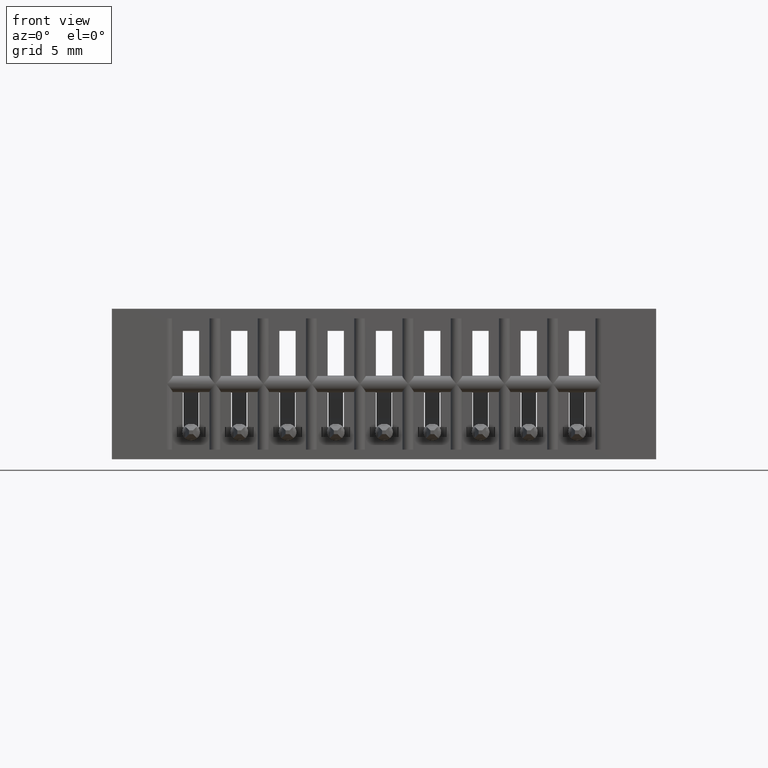
[diagram: clean part render]
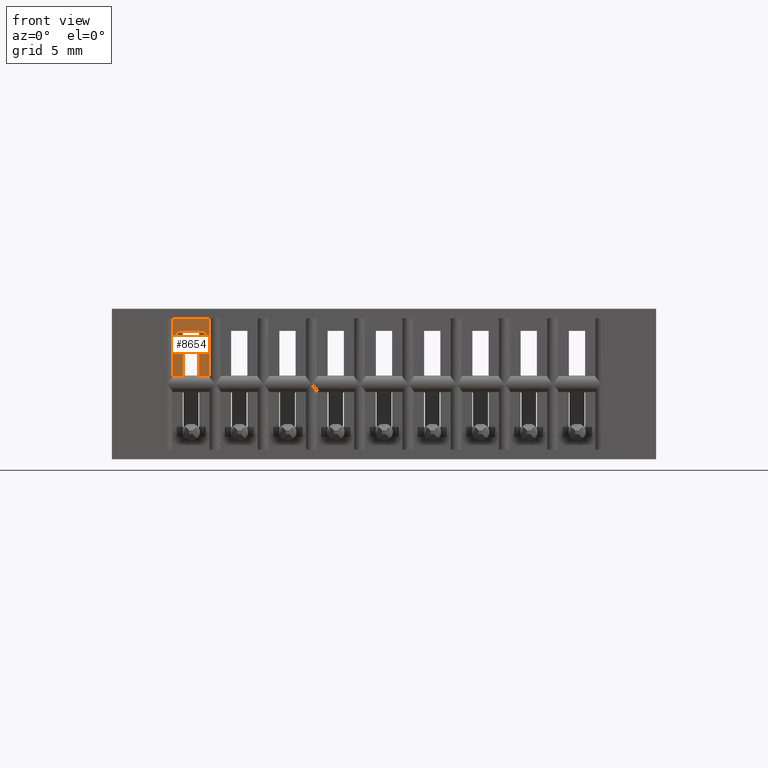
[diagram: same view with one face highlighted and labeled with its STEP entity id]
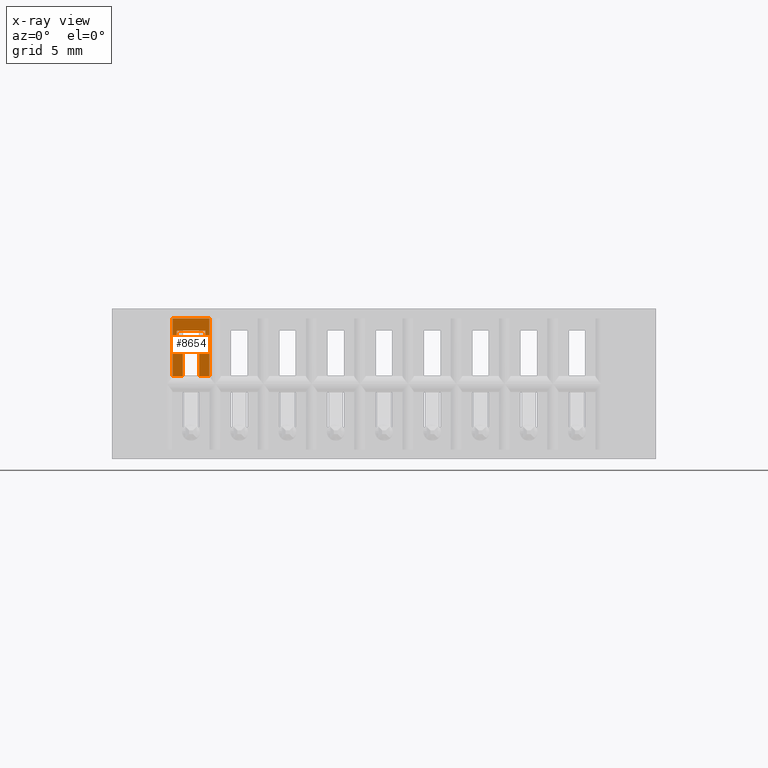
[diagram: x-ray of the same camera — body ghosted, the highlighted face saturated]
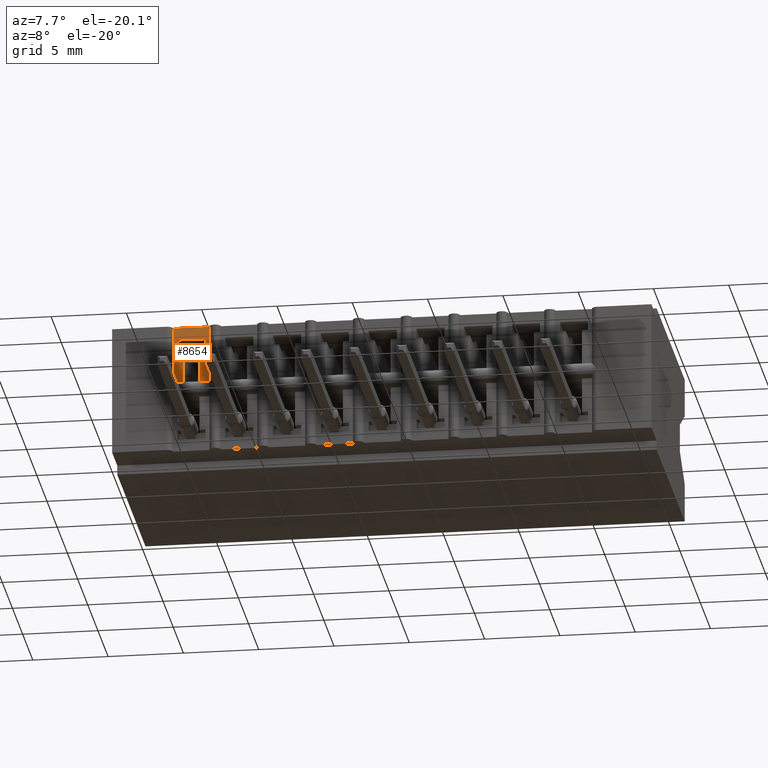
[diagram: same view with one face highlighted and labeled with its STEP entity id]
A machine part, front view. The second image highlights one B-rep face of the part: STEP entity #8654.
The next image is the same camera in x-ray: the body ghosted, the highlighted face saturated — about 0% of this face is hidden behind the body in this view.
A second angle (auxiliary view) of the same face is appended — the face is thin or edge-on in the first view.
In plain terms, the highlighted planar face has unit normal (0, 1, 0).
Its self-contained STEP definition (entity closure, byte-faithful):
#400 = LINE ( 'NONE', #8884, #6947 ) ;
#433 = EDGE_CURVE ( 'NONE', #1690, #7305, #17477, .T. ) ;
#636 = DIRECTION ( 'NONE',  ( 1.000000000000000000, 0.0000000000000000000, -2.307304048702924629E-16 ) ) ;
#667 = DIRECTION ( 'NONE',  ( -1.000000000000000000, -0.0000000000000000000, 2.307304048702924629E-16 ) ) ;
#753 = CARTESIAN_POINT ( 'NONE',  ( -19685.03937007874265, 0.01499999999999987801, -0.1741433463808434168 ) ) ;
#941 = DIRECTION ( 'NONE',  ( 1.000000000000000000, -0.0000000000000000000, -2.307304048702925122E-16 ) ) ;
#955 = VECTOR ( 'NONE', #1801, 39.37007874015748143 ) ;
#1187 = ORIENTED_EDGE ( 'NONE', *, *, #11832, .F. ) ;
#1385 = ORIENTED_EDGE ( 'NONE', *, *, #2469, .F. ) ;
#1690 = VERTEX_POINT ( 'NONE', #11915 ) ;
#1701 = DIRECTION ( 'NONE',  ( -0.0000000000000000000, -0.0000000000000000000, 1.000000000000000000 ) ) ;
#1801 = DIRECTION ( 'NONE',  ( 1.000000000000000000, -0.0000000000000000000, -2.307304048702925122E-16 ) ) ;
#1914 = CARTESIAN_POINT ( 'NONE',  ( 0.1839999999995913238, 0.01499999999999987801, -0.1741433463853853947 ) ) ;
#1949 = VECTOR ( 'NONE', #3710, 39.37007874015748143 ) ;
#2120 = VECTOR ( 'NONE', #6006, 39.37007874015748143 ) ;
#2371 = EDGE_CURVE ( 'NONE', #7305, #12217, #14092, .T. ) ;
#2459 = VECTOR ( 'NONE', #636, 39.37007874015748143 ) ;
#2469 = EDGE_CURVE ( 'NONE', #4465, #12217, #10388, .T. ) ;
#2598 = VECTOR ( 'NONE', #17450, 39.37007874015748143 ) ;
#3004 = VERTEX_POINT ( 'NONE', #8794 ) ;
#3010 = FACE_OUTER_BOUND ( 'NONE', #15028, .T. ) ;
#3639 = ORIENTED_EDGE ( 'NONE', *, *, #4146, .T. ) ;
#3694 = VECTOR ( 'NONE', #12821, 39.37007874015748143 ) ;
#3710 = DIRECTION ( 'NONE',  ( 1.365923996832131609E-15, -4.596859604723521792E-16, 1.000000000000000000 ) ) ;
#3750 = VERTEX_POINT ( 'NONE', #14937 ) ;
#3856 = VERTEX_POINT ( 'NONE', #10574 ) ;
#4102 = ORIENTED_EDGE ( 'NONE', *, *, #14007, .T. ) ;
#4146 = EDGE_CURVE ( 'NONE', #9570, #8851, #9909, .T. ) ;
#4463 = ORIENTED_EDGE ( 'NONE', *, *, #2371, .T. ) ;
#4465 = VERTEX_POINT ( 'NONE', #10427 ) ;
#4672 = AXIS2_PLACEMENT_3D ( 'NONE', #10208, #7627, #14473 ) ;
#4778 = EDGE_CURVE ( 'NONE', #12888, #3004, #12115, .T. ) ;
#4997 = LINE ( 'NONE', #753, #16534 ) ;
#5071 = VECTOR ( 'NONE', #1701, 39.37007874015748143 ) ;
#5395 = EDGE_CURVE ( 'NONE', #3750, #17401, #7184, .T. ) ;
#5479 = CARTESIAN_POINT ( 'NONE',  ( 0.2259999999999996456, 0.01499999999999982250, -0.08249999999999996225 ) ) ;
#5489 = CARTESIAN_POINT ( 'NONE',  ( 0.1574999999999997236, 0.01499999999999997169, -0.3900000000000000133 ) ) ;
#5719 = EDGE_CURVE ( 'NONE', #8851, #1690, #400, .T. ) ;
#5749 = DIRECTION ( 'NONE',  ( -1.000000000000000000, -6.287160262869416356E-33, 2.444074818391192251E-16 ) ) ;
#5887 = EDGE_CURVE ( 'NONE', #9570, #3004, #6582, .T. ) ;
#5931 = CARTESIAN_POINT ( 'NONE',  ( 0.2524999999999996692, 0.01499999999999997169, -0.02500000000000000486 ) ) ;
#6006 = DIRECTION ( 'NONE',  ( 2.385081683068867604E-16, 0.0000000000000000000, 1.000000000000000000 ) ) ;
#6174 = CARTESIAN_POINT ( 'NONE',  ( 19685.03937007874265, 0.01499999999999987801, -0.1741433463899272893 ) ) ;
#6582 = LINE ( 'NONE', #12120, #1949 ) ;
#6886 = CARTESIAN_POINT ( 'NONE',  ( 0.1679999999999996496, 0.01499999999999982250, -0.05749999999999997474 ) ) ;
#6947 = VECTOR ( 'NONE', #7598, 39.37007874015748143 ) ;
#7126 = ORIENTED_EDGE ( 'NONE', *, *, #5719, .T. ) ;
#7184 = LINE ( 'NONE', #8569, #3694 ) ;
#7305 = VERTEX_POINT ( 'NONE', #15302 ) ;
#7598 = DIRECTION ( 'NONE',  ( -2.385081683068867604E-16, 0.0000000000000000000, -1.000000000000000000 ) ) ;
#7626 = CARTESIAN_POINT ( 'NONE',  ( 0.1679999999999996219, 0.01499999999999979475, -5.162495758701521190E-17 ) ) ;
#7627 = DIRECTION ( 'NONE',  ( 1.060635277729750645E-31, 1.000000000000000000, 4.596859604723521792E-16 ) ) ;
#8105 = VECTOR ( 'NONE', #941, 39.37007874015748143 ) ;
#8151 = EDGE_CURVE ( 'NONE', #12888, #3750, #8823, .T. ) ;
#8569 = CARTESIAN_POINT ( 'NONE',  ( 0.1839999999999996638, 0.01499999999999983291, -0.08249999999999996225 ) ) ;
#8625 = CARTESIAN_POINT ( 'NONE',  ( 0.1839999999999996638, 0.01499999999999983291, -0.08249999999999993450 ) ) ;
#8654 = ADVANCED_FACE ( 'NONE', ( #3010 ), #16059, .F. ) ;
#8702 = ORIENTED_EDGE ( 'NONE', *, *, #12841, .F. ) ;
#8794 = CARTESIAN_POINT ( 'NONE',  ( 0.2419999999999996876, 0.01499999999999982250, -0.05749999999999998168 ) ) ;
#8823 = LINE ( 'NONE', #7626, #2598 ) ;
#8838 = VECTOR ( 'NONE', #11127, 39.37007874015748143 ) ;
#8851 = VERTEX_POINT ( 'NONE', #5479 ) ;
#8884 = CARTESIAN_POINT ( 'NONE',  ( 0.2259999999999996734, 0.01499999999999997169, -5.373951300518784932E-17 ) ) ;
#9184 = CARTESIAN_POINT ( 'NONE',  ( 0.1839999999999996916, 0.01499999999999999424, -0.02500000000000003608 ) ) ;
#9570 = VERTEX_POINT ( 'NONE', #17784 ) ;
#9658 = ORIENTED_EDGE ( 'NONE', *, *, #5395, .F. ) ;
#9667 = CARTESIAN_POINT ( 'NONE',  ( 0.1839999999999996638, 0.01499999999999997169, -0.08249999999999997613 ) ) ;
#9909 = LINE ( 'NONE', #8625, #10487 ) ;
#10208 = CARTESIAN_POINT ( 'NONE',  ( 0.1839999999999996916, 0.01499999999999979475, -3.715354659355037839E-17 ) ) ;
#10388 = LINE ( 'NONE', #9184, #955 ) ;
#10427 = CARTESIAN_POINT ( 'NONE',  ( 0.1574999999999997236, 0.01499999999999997169, -0.02500000000000000486 ) ) ;
#10487 = VECTOR ( 'NONE', #5749, 39.37007874015748143 ) ;
#10574 = CARTESIAN_POINT ( 'NONE',  ( 0.1574999999999997236, 0.01499999999999997169, -0.1741433463853853669 ) ) ;
#10858 = LINE ( 'NONE', #5489, #8838 ) ;
#11127 = DIRECTION ( 'NONE',  ( -0.0000000000000000000, -0.0000000000000000000, 1.000000000000000000 ) ) ;
#11318 = CARTESIAN_POINT ( 'NONE',  ( 0.2524999999999996692, 0.01499999999999997169, -0.3900000000000000133 ) ) ;
#11730 = LINE ( 'NONE', #11822, #2120 ) ;
#11822 = CARTESIAN_POINT ( 'NONE',  ( 0.1839999999999996916, 0.01499999999999997169, -4.404883600063556642E-17 ) ) ;
#11832 = EDGE_CURVE ( 'NONE', #12787, #3856, #4997, .T. ) ;
#11915 = CARTESIAN_POINT ( 'NONE',  ( 0.2259999999999996456, 0.01499999999999997169, -0.1741433463853854224 ) ) ;
#11929 = CARTESIAN_POINT ( 'NONE',  ( 0.1839999999999996916, 0.01499999999999991444, -0.05750000000000015515 ) ) ;
#12115 = LINE ( 'NONE', #11929, #8105 ) ;
#12120 = CARTESIAN_POINT ( 'NONE',  ( 0.2419999999999997708, 0.01499999999999979475, -1.163771384098141399E-16 ) ) ;
#12217 = VERTEX_POINT ( 'NONE', #5931 ) ;
#12787 = VERTEX_POINT ( 'NONE', #1914 ) ;
#12821 = DIRECTION ( 'NONE',  ( 1.000000000000000000, -6.287160262869394461E-33, -2.170533279014657500E-16 ) ) ;
#12841 = EDGE_CURVE ( 'NONE', #3856, #4465, #10858, .T. ) ;
#12888 = VERTEX_POINT ( 'NONE', #6886 ) ;
#13305 = ORIENTED_EDGE ( 'NONE', *, *, #8151, .F. ) ;
#14007 = EDGE_CURVE ( 'NONE', #12787, #17401, #11730, .T. ) ;
#14092 = LINE ( 'NONE', #11318, #5071 ) ;
#14473 = DIRECTION ( 'NONE',  ( 0.0000000000000000000, -4.596859604723521792E-16, 1.000000000000000000 ) ) ;
#14937 = CARTESIAN_POINT ( 'NONE',  ( 0.1679999999999996774, 0.01499999999999982250, -0.08249999999999996225 ) ) ;
#15019 = ORIENTED_EDGE ( 'NONE', *, *, #4778, .T. ) ;
#15028 = EDGE_LOOP ( 'NONE', ( #8702, #1187, #4102, #9658, #13305, #15019, #18079, #3639, #7126, #17848, #4463, #1385 ) ) ;
#15302 = CARTESIAN_POINT ( 'NONE',  ( 0.2525000000003088108, 0.01499999999999987801, -0.1741433463853854224 ) ) ;
#16059 = PLANE ( 'NONE',  #4672 ) ;
#16534 = VECTOR ( 'NONE', #667, 39.37007874015748143 ) ;
#17401 = VERTEX_POINT ( 'NONE', #9667 ) ;
#17450 = DIRECTION ( 'NONE',  ( 9.044631870915464862E-16, 4.596859604723521792E-16, -1.000000000000000000 ) ) ;
#17477 = LINE ( 'NONE', #6174, #2459 ) ;
#17784 = CARTESIAN_POINT ( 'NONE',  ( 0.2419999999999996598, 0.01499999999999982250, -0.08249999999999996225 ) ) ;
#17848 = ORIENTED_EDGE ( 'NONE', *, *, #433, .T. ) ;
#18079 = ORIENTED_EDGE ( 'NONE', *, *, #5887, .F. ) ;